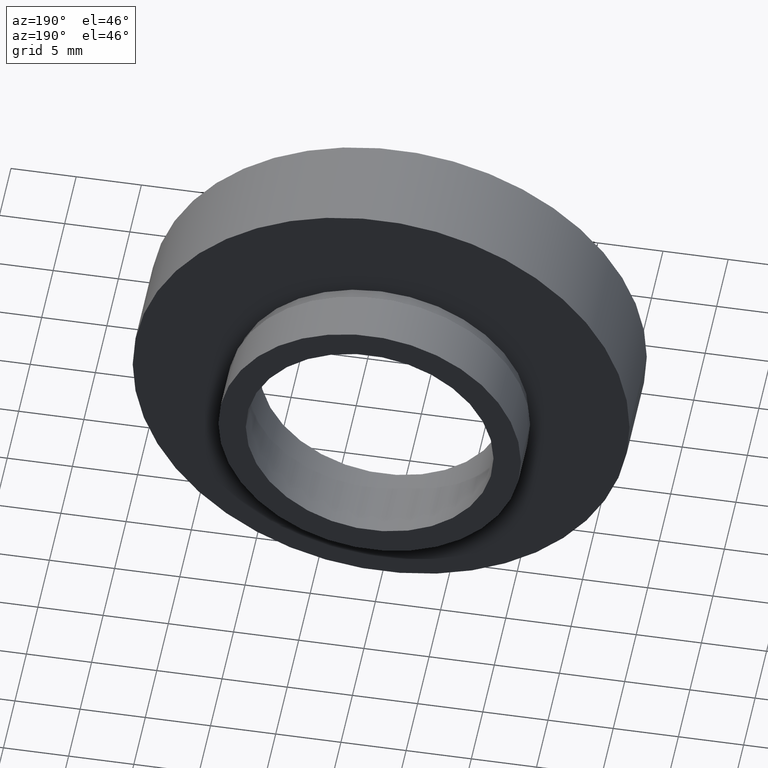
[diagram: clean part render]
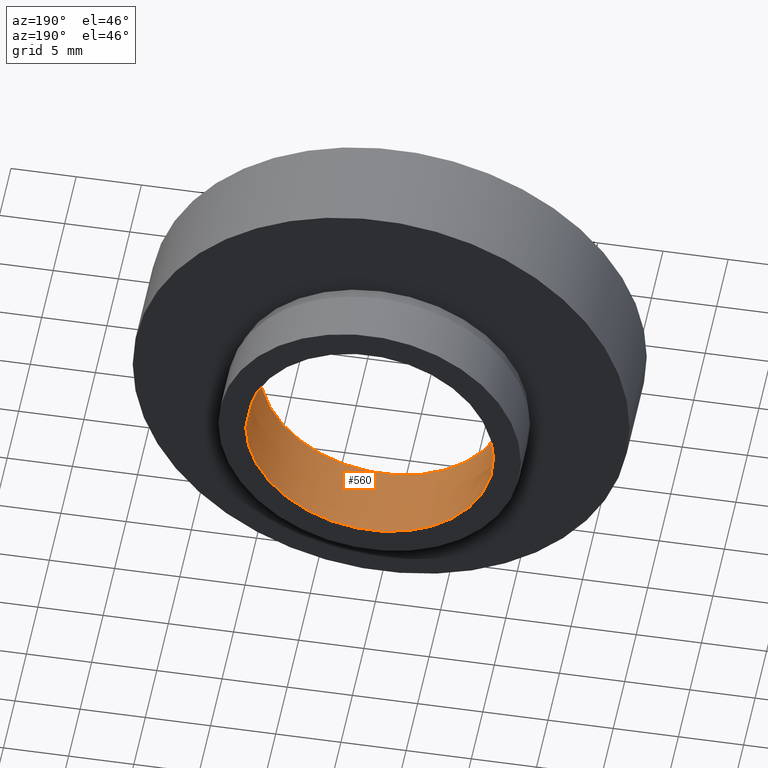
[diagram: same view with one face highlighted and labeled with its STEP entity id]
A machine part, auxiliary view. The second image highlights one B-rep face of the part: STEP entity #560.
In plain terms, the highlighted cylindrical surface (partial cylindrical patch) has radius 9.5 mm, axis along (-0, 1, -0).
Its self-contained STEP definition (entity closure, byte-faithful):
#17 = CARTESIAN_POINT ( 'NONE',  ( 9.500000000000001800, 16.88601823708207700, 1.163414459189985700E-015 ) ) ;
#21 = CARTESIAN_POINT ( 'NONE',  ( 9.500000000000001800, 12.49999999999999800, 1.163414459189985700E-015 ) ) ;
#26 = ORIENTED_EDGE ( 'NONE', *, *, #209, .T. ) ;
#30 = CARTESIAN_POINT ( 'NONE',  ( -9.500000000000001800, 16.88601823708207700, 0.0000000000000000000 ) ) ;
#75 = DIRECTION ( 'NONE',  ( -1.224646799147351000E-016, 1.000000000000000000, -0.0000000000000000000 ) ) ;
#95 = EDGE_LOOP ( 'NONE', ( #402, #155, #26, #620 ) ) ;
#120 = AXIS2_PLACEMENT_3D ( 'NONE', #548, #185, #252 ) ;
#129 = CIRCLE ( 'NONE', #401, 9.500000000000000000 ) ;
#151 = CARTESIAN_POINT ( 'NONE',  ( 5.371323195044473300E-016, 12.49999999999999600, 0.0000000000000000000 ) ) ;
#155 = ORIENTED_EDGE ( 'NONE', *, *, #158, .T. ) ;
#158 = EDGE_CURVE ( 'NONE', #221, #421, #451, .T. ) ;
#185 = DIRECTION ( 'NONE',  ( -1.224646799147351000E-016, 1.000000000000000000, -0.0000000000000000000 ) ) ;
#200 = DIRECTION ( 'NONE',  ( -1.224646799147351000E-016, 1.000000000000000000, -0.0000000000000000000 ) ) ;
#209 = EDGE_CURVE ( 'NONE', #421, #395, #287, .T. ) ;
#221 = VERTEX_POINT ( 'NONE', #386 ) ;
#247 = AXIS2_PLACEMENT_3D ( 'NONE', #151, #75, #249 ) ;
#249 = DIRECTION ( 'NONE',  ( -1.000000000000000000, -1.826024711554533400E-016, 0.0000000000000000000 ) ) ;
#250 = EDGE_CURVE ( 'NONE', #221, #299, #129, .T. ) ;
#252 = DIRECTION ( 'NONE',  ( -1.000000000000000000, 0.0000000000000000000, 0.0000000000000000000 ) ) ;
#287 = CIRCLE ( 'NONE', #247, 9.500000000000001800 ) ;
#299 = VERTEX_POINT ( 'NONE', #327 ) ;
#311 = LINE ( 'NONE', #30, #519 ) ;
#326 = EDGE_CURVE ( 'NONE', #299, #395, #311, .T. ) ;
#327 = CARTESIAN_POINT ( 'NONE',  ( -9.499999999999998200, 6.499999999999996400, 0.0000000000000000000 ) ) ;
#329 = CYLINDRICAL_SURFACE ( 'NONE', #120, 9.500000000000001800 ) ;
#333 = DIRECTION ( 'NONE',  ( -1.224646799147351000E-016, 1.000000000000000000, -0.0000000000000000000 ) ) ;
#360 = CARTESIAN_POINT ( 'NONE',  ( 1.271920398992858000E-015, 6.499999999999997300, 0.0000000000000000000 ) ) ;
#367 = DIRECTION ( 'NONE',  ( -1.000000000000000000, -9.130123557772668300E-017, 0.0000000000000000000 ) ) ;
#381 = VECTOR ( 'NONE', #200, 1000.000000000000000 ) ;
#386 = CARTESIAN_POINT ( 'NONE',  ( 9.500000000000001800, 6.499999999999998200, 1.163414459189985700E-015 ) ) ;
#395 = VERTEX_POINT ( 'NONE', #500 ) ;
#401 = AXIS2_PLACEMENT_3D ( 'NONE', #360, #333, #367 ) ;
#402 = ORIENTED_EDGE ( 'NONE', *, *, #250, .F. ) ;
#403 = DIRECTION ( 'NONE',  ( -1.224646799147351000E-016, 1.000000000000000000, -0.0000000000000000000 ) ) ;
#421 = VERTEX_POINT ( 'NONE', #21 ) ;
#451 = LINE ( 'NONE', #17, #381 ) ;
#500 = CARTESIAN_POINT ( 'NONE',  ( -9.500000000000001800, 12.49999999999999500, 0.0000000000000000000 ) ) ;
#519 = VECTOR ( 'NONE', #403, 1000.000000000000000 ) ;
#548 = CARTESIAN_POINT ( 'NONE',  ( 0.0000000000000000000, 16.88601823708207700, 0.0000000000000000000 ) ) ;
#560 = ADVANCED_FACE ( 'NONE', ( #619 ), #329, .F. ) ;
#619 = FACE_OUTER_BOUND ( 'NONE', #95, .T. ) ;
#620 = ORIENTED_EDGE ( 'NONE', *, *, #326, .F. ) ;